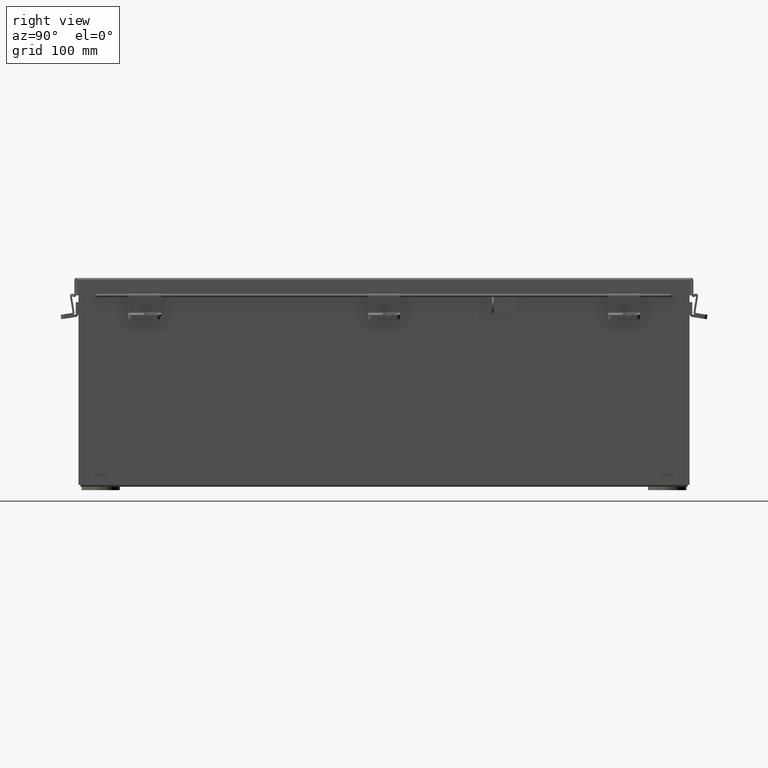
[diagram: clean part render]
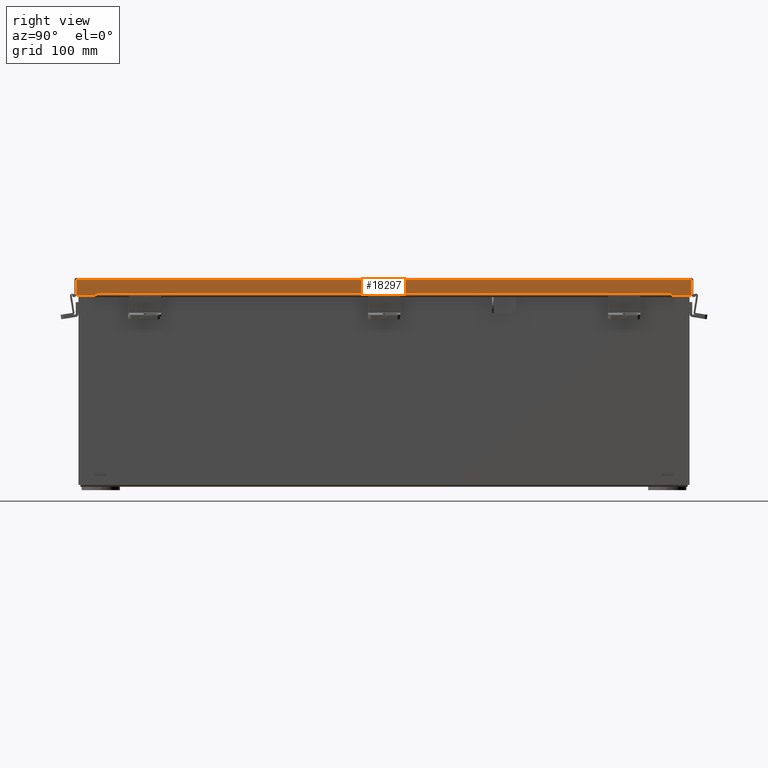
[diagram: same view with one face highlighted and labeled with its STEP entity id]
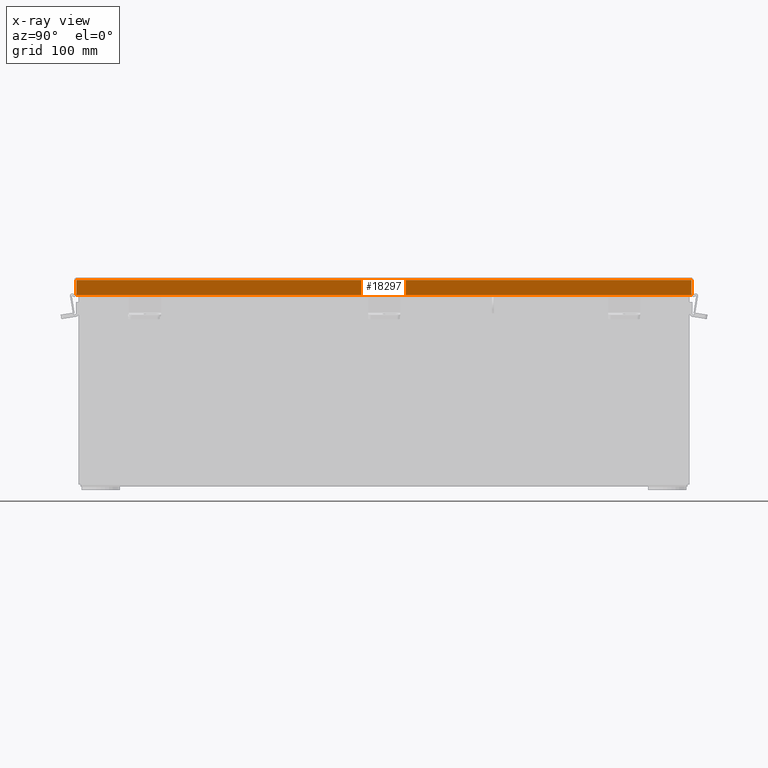
[diagram: x-ray of the same camera — body ghosted, the highlighted face saturated]
A machine part, right view. The second image highlights one B-rep face of the part: STEP entity #18297.
The next image is the same camera in x-ray: the body ghosted, the highlighted face saturated — about 0% of this face is hidden behind the body in this view.
In plain terms, the highlighted planar face has unit normal (-1, 0, -0).
Its self-contained STEP definition (entity closure, byte-faithful):
#80 = CARTESIAN_POINT ( 'NONE',  ( -4.156250000000008900, 11.32447893218813200, 0.6122999999999994000 ) ) ;
#770 = DIRECTION ( 'NONE',  ( -8.910887686648135600E-033, 1.000000000000000000, 0.0000000000000000000 ) ) ;
#939 = DIRECTION ( 'NONE',  ( 3.569293475308526100E-015, 9.860761315262647600E-032, -1.000000000000000000 ) ) ;
#1467 = EDGE_CURVE ( 'NONE', #9497, #14671, #14071, .T. ) ;
#1561 = CARTESIAN_POINT ( 'NONE',  ( -4.156250000000000900, 11.32447893218813400, 0.5967115427318793200 ) ) ;
#1595 = CARTESIAN_POINT ( 'NONE',  ( -4.156249999999998200, -12.07447893218813600, 0.01300000000000010700 ) ) ;
#2456 = EDGE_CURVE ( 'NONE', #13959, #19846, #5647, .T. ) ;
#2482 = FACE_OUTER_BOUND ( 'NONE', #20312, .T. ) ;
#2924 = VECTOR ( 'NONE', #10586, 39.37007874015748100 ) ;
#3169 = ORIENTED_EDGE ( 'NONE', *, *, #10577, .T. ) ;
#3413 = ORIENTED_EDGE ( 'NONE', *, *, #11182, .F. ) ;
#3726 = CARTESIAN_POINT ( 'NONE',  ( -4.156250000000007100, -1.280553747030123400E-017, 0.6123000000000005100 ) ) ;
#4691 = PLANE ( 'NONE',  #7628 ) ;
#4911 = ORIENTED_EDGE ( 'NONE', *, *, #2456, .F. ) ;
#5133 = DIRECTION ( 'NONE',  ( -3.569293475308526100E-015, -9.860761315262647600E-032, 1.000000000000000000 ) ) ;
#5647 = LINE ( 'NONE', #1561, #18678 ) ;
#5814 = LINE ( 'NONE', #8634, #22403 ) ;
#7578 = DIRECTION ( 'NONE',  ( 1.051488783018102700E-013, 1.401985044024134400E-013, -1.000000000000000000 ) ) ;
#7627 = LINE ( 'NONE', #17231, #20883 ) ;
#7628 = AXIS2_PLACEMENT_3D ( 'NONE', #15211, #10808, #939 ) ;
#8090 = CARTESIAN_POINT ( 'NONE',  ( -4.156249999999998200, 12.15624999999999800, 0.01300000000000010700 ) ) ;
#8634 = CARTESIAN_POINT ( 'NONE',  ( -4.156250000000000900, -11.32447893218813700, 0.5967115427318782100 ) ) ;
#8922 = ORIENTED_EDGE ( 'NONE', *, *, #17352, .T. ) ;
#8945 = LINE ( 'NONE', #15379, #18093 ) ;
#9420 = CARTESIAN_POINT ( 'NONE',  ( -4.156250000000007100, 11.32447893218813200, 0.6122999999999994000 ) ) ;
#9497 = VERTEX_POINT ( 'NONE', #1595 ) ;
#9977 = LINE ( 'NONE', #3726, #13997 ) ;
#10063 = VECTOR ( 'NONE', #5133, 39.37007874015748100 ) ;
#10316 = VERTEX_POINT ( 'NONE', #10706 ) ;
#10377 = VERTEX_POINT ( 'NONE', #12628 ) ;
#10577 = EDGE_CURVE ( 'NONE', #22261, #15568, #9977, .T. ) ;
#10586 = DIRECTION ( 'NONE',  ( -8.910887686648135600E-033, 1.000000000000000000, -0.0000000000000000000 ) ) ;
#10706 = CARTESIAN_POINT ( 'NONE',  ( -4.156250000000007100, -11.32447893218814100, 0.6122999999999994000 ) ) ;
#10784 = ORIENTED_EDGE ( 'NONE', *, *, #16206, .T. ) ;
#10808 = DIRECTION ( 'NONE',  ( 1.000000000000000000, -2.759757623545357800E-031, 3.569293475308526100E-015 ) ) ;
#11124 = CARTESIAN_POINT ( 'NONE',  ( -4.156250000000000900, 11.32447893218813400, 0.5967115427318793200 ) ) ;
#11182 = EDGE_CURVE ( 'NONE', #22261, #13959, #18636, .T. ) ;
#11859 = ORIENTED_EDGE ( 'NONE', *, *, #1467, .F. ) ;
#12480 = CARTESIAN_POINT ( 'NONE',  ( -4.156249999999998200, 12.07447893218813200, 0.01300000000000010700 ) ) ;
#12628 = CARTESIAN_POINT ( 'NONE',  ( -4.156250000000007100, -12.07447893218813600, 0.6122999999999994000 ) ) ;
#13892 = LINE ( 'NONE', #16241, #10063 ) ;
#13959 = VERTEX_POINT ( 'NONE', #11124 ) ;
#13997 = VECTOR ( 'NONE', #14736, 39.37007874015748100 ) ;
#14071 = LINE ( 'NONE', #8090, #2924 ) ;
#14251 = ORIENTED_EDGE ( 'NONE', *, *, #17784, .F. ) ;
#14309 = DIRECTION ( 'NONE',  ( -3.504962610060189500E-014, 1.401985044024078600E-013, 1.000000000000000000 ) ) ;
#14671 = VERTEX_POINT ( 'NONE', #12480 ) ;
#14736 = DIRECTION ( 'NONE',  ( -8.910887686648135600E-033, 1.000000000000000000, 0.0000000000000000000 ) ) ;
#14786 = CARTESIAN_POINT ( 'NONE',  ( -4.156250000000007100, 12.07447893218813200, 0.6122999999999994000 ) ) ;
#15211 = CARTESIAN_POINT ( 'NONE',  ( -4.156250000000002700, 0.0000000000000000000, -1.420560956705417000E-014 ) ) ;
#15379 = CARTESIAN_POINT ( 'NONE',  ( -4.156250000000007100, -1.280553747030123400E-017, 0.6123000000000005100 ) ) ;
#15568 = VERTEX_POINT ( 'NONE', #14786 ) ;
#16206 = EDGE_CURVE ( 'NONE', #10377, #10316, #8945, .T. ) ;
#16241 = CARTESIAN_POINT ( 'NONE',  ( -4.156250000000002700, -12.07447893218813600, -1.529834876451987200E-014 ) ) ;
#16610 = ORIENTED_EDGE ( 'NONE', *, *, #19974, .F. ) ;
#17231 = CARTESIAN_POINT ( 'NONE',  ( -4.156250000000002700, 12.07447893218813200, 0.0000000000000000000 ) ) ;
#17352 = EDGE_CURVE ( 'NONE', #9497, #10377, #13892, .T. ) ;
#17784 = EDGE_CURVE ( 'NONE', #14671, #15568, #7627, .T. ) ;
#18093 = VECTOR ( 'NONE', #770, 39.37007874015748100 ) ;
#18297 = ADVANCED_FACE ( 'NONE', ( #2482 ), #4691, .F. ) ;
#18510 = DIRECTION ( 'NONE',  ( 8.910887686648135600E-033, -1.000000000000000000, -0.0000000000000000000 ) ) ;
#18636 = LINE ( 'NONE', #80, #20819 ) ;
#18678 = VECTOR ( 'NONE', #18510, 39.37007874015748100 ) ;
#19052 = CARTESIAN_POINT ( 'NONE',  ( -4.156250000000000900, -11.32447893218813700, 0.5967115427318782100 ) ) ;
#19846 = VERTEX_POINT ( 'NONE', #19052 ) ;
#19974 = EDGE_CURVE ( 'NONE', #19846, #10316, #5814, .T. ) ;
#20312 = EDGE_LOOP ( 'NONE', ( #3413, #3169, #14251, #11859, #8922, #10784, #16610, #4911 ) ) ;
#20555 = DIRECTION ( 'NONE',  ( -3.569293475308526100E-015, -9.860761315262647600E-032, 1.000000000000000000 ) ) ;
#20819 = VECTOR ( 'NONE', #7578, 39.37007874015748100 ) ;
#20883 = VECTOR ( 'NONE', #20555, 39.37007874015748100 ) ;
#22261 = VERTEX_POINT ( 'NONE', #9420 ) ;
#22403 = VECTOR ( 'NONE', #14309, 39.37007874015748100 ) ;